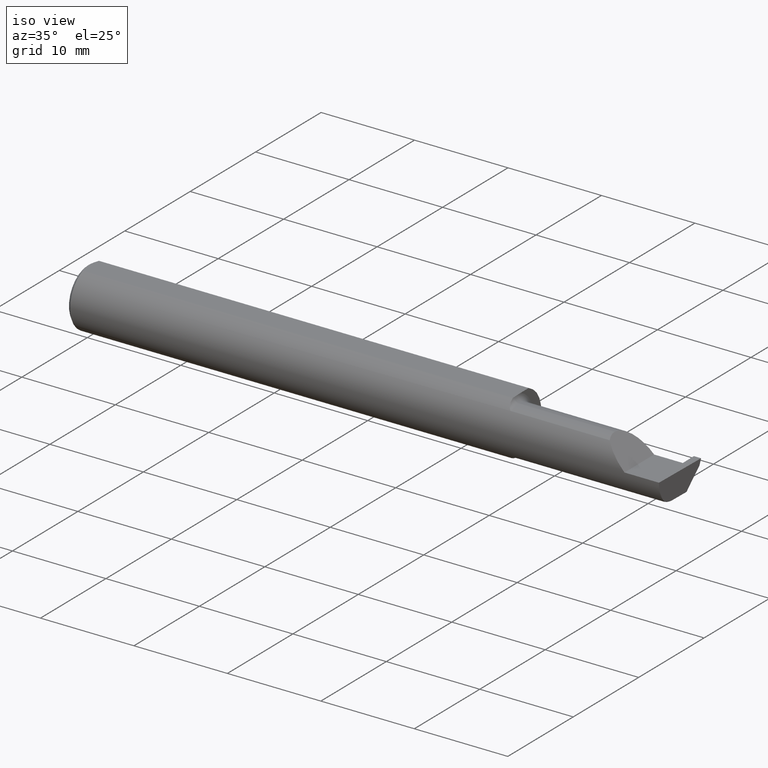
[diagram: clean part render]
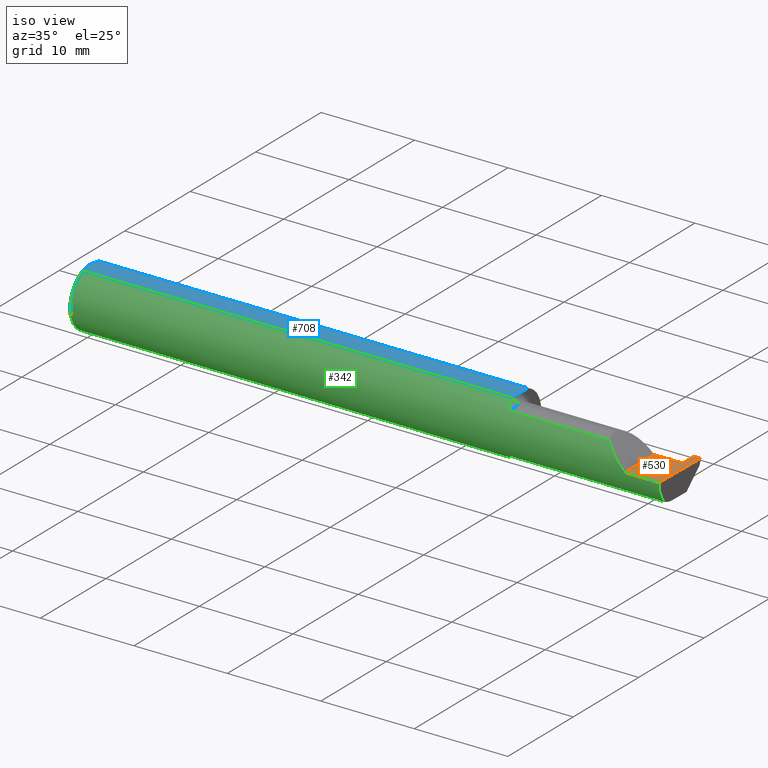
[diagram: same view with three faces highlighted in distinct colors, each labeled with its STEP entity id]
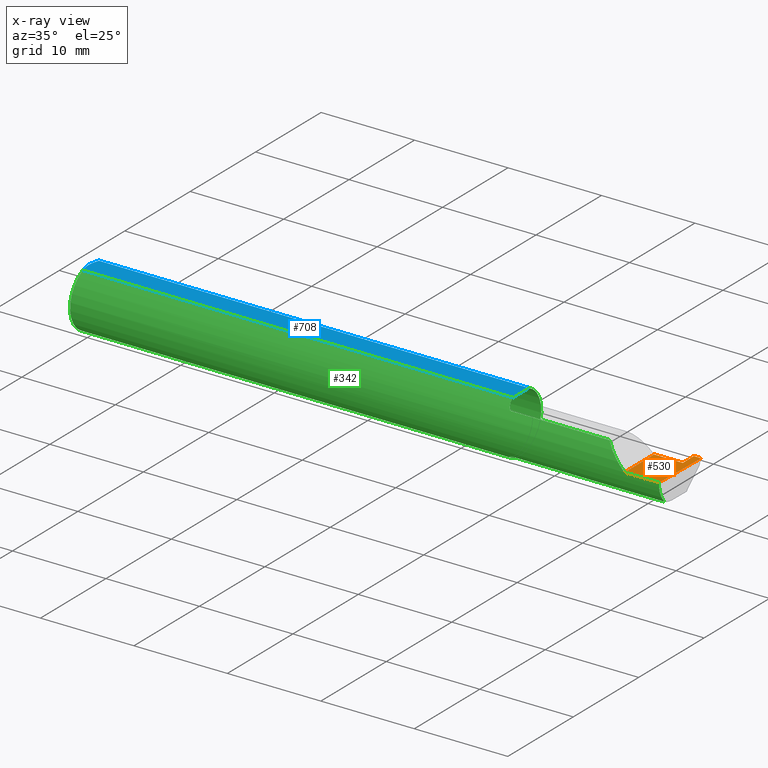
[diagram: x-ray of the same camera — body ghosted, the three highlighted faces saturated]
A machine part, iso view with three faces highlighted in distinct colors.
The next image is the same camera in x-ray (body ghosted, the three faces saturated) — at least one of them is partly hidden behind the body in this view.
Their STEP definitions:

[orange] entity #530 — the highlighted planar face has unit normal (-0, 0, -1).
#3 = DIRECTION ( 'NONE',  ( -1.000000000000000000, -1.575190080147340530E-15, 1.224646799147352221E-16 ) ) ;
#8 = VERTEX_POINT ( 'NONE', #549 ) ;
#32 = CARTESIAN_POINT ( 'NONE',  ( 2.469500000000000028, 0.1221499999999999808, -3.306546357697866753E-19 ) ) ;
#39 = ORIENTED_EDGE ( 'NONE', *, *, #294, .F. ) ;
#51 = CARTESIAN_POINT ( 'NONE',  ( 2.399999999999999911, 0.1221499999999999808, -3.306546357697866753E-19 ) ) ;
#63 = EDGE_CURVE ( 'NONE', #681, #8, #738, .T. ) ;
#78 = CARTESIAN_POINT ( 'NONE',  ( 2.500000000000000000, -0.2000000000000000111, 0.000000000000000000 ) ) ;
#88 = ORIENTED_EDGE ( 'NONE', *, *, #609, .T. ) ;
#107 = LINE ( 'NONE', #425, #680 ) ;
#118 = DIRECTION ( 'NONE',  ( 0.01744642479411464761, 0.9998477995484629233, -2.135106780035675284E-18 ) ) ;
#123 = LINE ( 'NONE', #183, #574 ) ;
#149 = CARTESIAN_POINT ( 'NONE',  ( 1.824999999999999956, 0.05414999999999996899, 8.266365894244626938E-17 ) ) ;
#154 = AXIS2_PLACEMENT_3D ( 'NONE', #78, #208, #376 ) ;
#183 = CARTESIAN_POINT ( 'NONE',  ( 2.494380489674781209, -0.1999019447116721915, 6.881915332554903690E-19 ) ) ;
#188 = ORIENTED_EDGE ( 'NONE', *, *, #366, .T. ) ;
#208 = DIRECTION ( 'NONE',  ( -1.224646799147352221E-16, 0.000000000000000000, -1.000000000000000000 ) ) ;
#227 = LINE ( 'NONE', #586, #270 ) ;
#234 = CARTESIAN_POINT ( 'NONE',  ( 2.495690077103728921, -0.1248499999950965084, 1.733801157256528502E-17 ) ) ;
#236 = VERTEX_POINT ( 'NONE', #400 ) ;
#251 = VERTEX_POINT ( 'NONE', #645 ) ;
#258 = VERTEX_POINT ( 'NONE', #234 ) ;
#270 = VECTOR ( 'NONE', #472, 39.37007874015748143 ) ;
#294 = EDGE_CURVE ( 'NONE', #258, #251, #428, .T. ) ;
#298 = DIRECTION ( 'NONE',  ( 1.000000000000000000, -0.000000000000000000, -0.000000000000000000 ) ) ;
#313 = PLANE ( 'NONE',  #154 ) ;
#334 = FACE_OUTER_BOUND ( 'NONE', #709, .T. ) ;
#365 = CARTESIAN_POINT ( 'NONE',  ( 3.749399456654637998E-32, -0.1248500000000000026, 3.061616997868380676E-16 ) ) ;
#366 = EDGE_CURVE ( 'NONE', #258, #471, #123, .T. ) ;
#376 = DIRECTION ( 'NONE',  ( -1.000000000000000000, 0.000000000000000000, 1.224646799147352221E-16 ) ) ;
#388 = EDGE_CURVE ( 'NONE', #236, #8, #107, .T. ) ;
#400 = CARTESIAN_POINT ( 'NONE',  ( 2.470684773821554714, 0.05415000000000003144, 1.033206487548650521E-17 ) ) ;
#421 = EDGE_CURVE ( 'NONE', #731, #471, #607, .T. ) ;
#425 = CARTESIAN_POINT ( 'NONE',  ( 2.499999999999999556, 0.05415000000000008695, 4.902684361075352417E-32 ) ) ;
#428 = LINE ( 'NONE', #365, #431 ) ;
#431 = VECTOR ( 'NONE', #610, 39.37007874015748143 ) ;
#437 = CARTESIAN_POINT ( 'NONE',  ( 2.350000000000000089, -0.2000000000000000111, 1.836970198721028825E-17 ) ) ;
#439 = ORIENTED_EDGE ( 'NONE', *, *, #388, .T. ) ;
#469 = CARTESIAN_POINT ( 'NONE',  ( 2.350000000000000089, 0.05414999999999985103, 1.836970198721028825E-17 ) ) ;
#471 = VERTEX_POINT ( 'NONE', #684 ) ;
#472 = DIRECTION ( 'NONE',  ( 0.01742050049977532031, -0.9998482515673753346, -2.130797594924658018E-18 ) ) ;
#530 = ADVANCED_FACE ( 'NONE', ( #334 ), #313, .F. ) ;
#535 = VECTOR ( 'NONE', #298, 39.37007874015748143 ) ;
#549 = CARTESIAN_POINT ( 'NONE',  ( 2.469500000000000028, 0.05415000000000000369, 8.266350036991706304E-17 ) ) ;
#562 = EDGE_CURVE ( 'NONE', #251, #681, #733, .T. ) ;
#570 = DIRECTION ( 'NONE',  ( -0.000000000000000000, 1.000000000000000000, -0.000000000000000000 ) ) ;
#574 = VECTOR ( 'NONE', #118, 39.37007874015748854 ) ;
#586 = CARTESIAN_POINT ( 'NONE',  ( 2.475120418573686809, -0.2004334805406639275, 3.046869975786049280E-18 ) ) ;
#607 = LINE ( 'NONE', #51, #535 ) ;
#609 = EDGE_CURVE ( 'NONE', #731, #236, #227, .T. ) ;
#610 = DIRECTION ( 'NONE',  ( -1.000000000000000000, -0.000000000000000000, -0.000000000000000000 ) ) ;
#626 = DIRECTION ( 'NONE',  ( 1.000000000000000000, 0.000000000000000000, 0.000000000000000000 ) ) ;
#645 = CARTESIAN_POINT ( 'NONE',  ( 2.350000000000000089, -0.1248500000000000026, 1.836970198721028825E-17 ) ) ;
#657 = ORIENTED_EDGE ( 'NONE', *, *, #63, .F. ) ;
#660 = ORIENTED_EDGE ( 'NONE', *, *, #421, .F. ) ;
#680 = VECTOR ( 'NONE', #3, 39.37007874015748143 ) ;
#681 = VERTEX_POINT ( 'NONE', #469 ) ;
#683 = VECTOR ( 'NONE', #570, 39.37007874015748143 ) ;
#684 = CARTESIAN_POINT ( 'NONE',  ( 2.500000000000000444, 0.1221499999999999808, 1.947508823608312588E-17 ) ) ;
#709 = EDGE_LOOP ( 'NONE', ( #39, #188, #660, #88, #439, #657, #750 ) ) ;
#731 = VERTEX_POINT ( 'NONE', #32 ) ;
#733 = LINE ( 'NONE', #437, #683 ) ;
#738 = LINE ( 'NONE', #149, #746 ) ;
#746 = VECTOR ( 'NONE', #626, 39.37007874015748143 ) ;
#750 = ORIENTED_EDGE ( 'NONE', *, *, #562, .F. ) ;

[blue] entity #708 — the highlighted planar face has unit normal (0, -0, 1).
#21 = CARTESIAN_POINT ( 'NONE',  ( 0.000000000000000000, -0.04895916665957456698, 0.1148500000000000076 ) ) ;
#27 = CARTESIAN_POINT ( 'NONE',  ( 0.01499999999999999944, -0.04895916665957456698, 0.1148500000000000076 ) ) ;
#30 = CARTESIAN_POINT ( 'NONE',  ( 0.004999999999999990563, 1.454187663965904829E-17, 0.1148500000000000076 ) ) ;
#44 = B_SPLINE_CURVE_WITH_KNOTS ( 'NONE', 3,
 ( #352, #648, #590, #348, #479, #760 ),
 .UNSPECIFIED., .F., .F.,
 ( 4, 2, 4 ),
 ( 0.009355882855462110265, 0.009420520835871136131, 0.009485158816280161997 ),
 .UNSPECIFIED. ) ;
#53 = VERTEX_POINT ( 'NONE', #27 ) ;
#60 = DIRECTION ( 'NONE',  ( -1.000000000000000000, -0.000000000000000000, -0.000000000000000000 ) ) ;
#79 = CARTESIAN_POINT ( 'NONE',  ( 1.826365755776839350, -0.04385000000000001397, 0.1148500000000000076 ) ) ;
#85 = EDGE_CURVE ( 'NONE', #142, #557, #335, .T. ) ;
#89 = FACE_OUTER_BOUND ( 'NONE', #483, .T. ) ;
#106 = CARTESIAN_POINT ( 'NONE',  ( 1.824999999999999734, 0.0001781444078671173391, 0.1148500000000000076 ) ) ;
#116 = CARTESIAN_POINT ( 'NONE',  ( 0.005932194444709715242, -0.01671525318617308672, 0.1148499999999999938 ) ) ;
#126 = CARTESIAN_POINT ( 'NONE',  ( 0.01195732443765547617, -0.04120008761723503027, 0.1148500000000000076 ) ) ;
#136 = VERTEX_POINT ( 'NONE', #79 ) ;
#142 = VERTEX_POINT ( 'NONE', #525 ) ;
#143 = B_SPLINE_CURVE_WITH_KNOTS ( 'NONE', 3,
 ( #424, #658, #116, #427, #126, #361 ),
 .UNSPECIFIED., .F., .F.,
 ( 4, 2, 4 ),
 ( 0.003658435455108827606, 0.004289327297787134258, 0.004920219140465441343 ),
 .UNSPECIFIED. ) ;
#157 = CARTESIAN_POINT ( 'NONE',  ( 0.004999999999999962808, 0.008410227287019804779, 0.1148500000000000076 ) ) ;
#169 = CARTESIAN_POINT ( 'NONE',  ( 0.004999999999999990563, 1.454187663965904829E-17, 0.1148500000000000076 ) ) ;
#171 = CARTESIAN_POINT ( 'NONE',  ( 1.825400391910593445, -0.01449986171080065549, 0.1148500000000000076 ) ) ;
#220 = CARTESIAN_POINT ( 'NONE',  ( 1.826365755776839350, -0.04385000000000001397, 0.1148500000000000076 ) ) ;
#225 = CARTESIAN_POINT ( 'NONE',  ( 0.01193974418109659125, 0.04115525648180412555, 0.1148500000000000215 ) ) ;
#235 = EDGE_CURVE ( 'NONE', #239, #279, #747, .T. ) ;
#239 = VERTEX_POINT ( 'NONE', #283 ) ;
#262 = EDGE_CURVE ( 'NONE', #349, #136, #44, .T. ) ;
#273 = DIRECTION ( 'NONE',  ( -0.000000000000000000, 1.000000000000000000, 0.000000000000000000 ) ) ;
#279 = VERTEX_POINT ( 'NONE', #30 ) ;
#283 = CARTESIAN_POINT ( 'NONE',  ( 0.01499999999999987454, 0.04895916665957496944, 0.1148500000000000076 ) ) ;
#335 = LINE ( 'NONE', #613, #665 ) ;
#348 = CARTESIAN_POINT ( 'NONE',  ( 1.826362484150211518, -0.04555293709217378417, 0.1148500000000000076 ) ) ;
#349 = VERTEX_POINT ( 'NONE', #372 ) ;
#352 = CARTESIAN_POINT ( 'NONE',  ( 1.826326891871132618, -0.04895916665958129077, 0.1148500000000000076 ) ) ;
#361 = CARTESIAN_POINT ( 'NONE',  ( 0.01499999999999999944, -0.04895916665957456698, 0.1148500000000000076 ) ) ;
#372 = CARTESIAN_POINT ( 'NONE',  ( 1.826326891871132618, -0.04895916665958129077, 0.1148500000000000076 ) ) ;
#374 = ORIENTED_EDGE ( 'NONE', *, *, #736, .T. ) ;
#384 = ORIENTED_EDGE ( 'NONE', *, *, #786, .T. ) ;
#408 = ORIENTED_EDGE ( 'NONE', *, *, #235, .T. ) ;
#411 = CARTESIAN_POINT ( 'NONE',  ( 0.009410502401328750890, 0.03310661131402438395, 0.1148499999999999938 ) ) ;
#413 = EDGE_CURVE ( 'NONE', #557, #239, #662, .T. ) ;
#423 = ORIENTED_EDGE ( 'NONE', *, *, #413, .T. ) ;
#424 = CARTESIAN_POINT ( 'NONE',  ( 0.004999999999999990563, 1.454187663965904829E-17, 0.1148500000000000076 ) ) ;
#427 = CARTESIAN_POINT ( 'NONE',  ( 0.009415874254822407391, -0.03313958207962815206, 0.1148500000000000076 ) ) ;
#454 = DIRECTION ( 'NONE',  ( 1.000000000000000000, 0.000000000000000000, 0.000000000000000000 ) ) ;
#466 = EDGE_CURVE ( 'NONE', #53, #349, #514, .T. ) ;
#467 = CARTESIAN_POINT ( 'NONE',  ( 1.826365755776839572, -0.03650543323727819395, 0.1148500000000000215 ) ) ;
#479 = CARTESIAN_POINT ( 'NONE',  ( 1.826365755776839350, -0.04470142088177659484, 0.1148500000000000076 ) ) ;
#480 = ORIENTED_EDGE ( 'NONE', *, *, #466, .T. ) ;
#483 = EDGE_LOOP ( 'NONE', ( #480, #492, #374, #758, #423, #408, #384 ) ) ;
#492 = ORIENTED_EDGE ( 'NONE', *, *, #262, .T. ) ;
#494 = CARTESIAN_POINT ( 'NONE',  ( 1.824999999999999734, 0.04895916665957496944, 0.1148500000000000076 ) ) ;
#498 = AXIS2_PLACEMENT_3D ( 'NONE', #520, #756, #759 ) ;
#514 = LINE ( 'NONE', #21, #627 ) ;
#516 = PLANE ( 'NONE',  #498 ) ;
#520 = CARTESIAN_POINT ( 'NONE',  ( 2.500000000000000000, -0.1248500000000000165, 0.1148500000000000076 ) ) ;
#525 = CARTESIAN_POINT ( 'NONE',  ( 1.824999999999999734, 0.0001781444078671173391, 0.1148500000000000076 ) ) ;
#545 = CARTESIAN_POINT ( 'NONE',  ( 1.824999999999999734, -0.007185469346090048864, 0.1148500000000000076 ) ) ;
#557 = VERTEX_POINT ( 'NONE', #494 ) ;
#590 = CARTESIAN_POINT ( 'NONE',  ( 1.826349474474282086, -0.04725615793152068700, 0.1148499999999999938 ) ) ;
#613 = CARTESIAN_POINT ( 'NONE',  ( 1.824999999999999734, -0.1248500000000000165, 0.1148500000000000076 ) ) ;
#627 = VECTOR ( 'NONE', #454, 39.37007874015748143 ) ;
#638 = B_SPLINE_CURVE_WITH_KNOTS ( 'NONE', 3,
 ( #220, #467, #654, #171, #545, #106 ),
 .UNSPECIFIED., .F., .F.,
 ( 4, 2, 4 ),
 ( 0.009485158816280161997, 0.01004274199597738476, 0.01060032517567460753 ),
 .UNSPECIFIED. ) ;
#648 = CARTESIAN_POINT ( 'NONE',  ( 1.826339737573306587, -0.04810771292240879210, 0.1148500000000000215 ) ) ;
#654 = CARTESIAN_POINT ( 'NONE',  ( 1.826090261609496501, -0.02916889382056607818, 0.1148499999999999938 ) ) ;
#655 = VECTOR ( 'NONE', #60, 39.37007874015748143 ) ;
#658 = CARTESIAN_POINT ( 'NONE',  ( 0.004999999999999964542, -0.008410771716546819321, 0.1148500000000000215 ) ) ;
#662 = LINE ( 'NONE', #719, #655 ) ;
#665 = VECTOR ( 'NONE', #273, 39.37007874015748143 ) ;
#704 = CARTESIAN_POINT ( 'NONE',  ( 0.005947935873631229539, 0.01679708999422689641, 0.1148500000000000076 ) ) ;
#708 = ADVANCED_FACE ( 'NONE', ( #89 ), #516, .T. ) ;
#719 = CARTESIAN_POINT ( 'NONE',  ( 0.000000000000000000, 0.04895916665957456698, 0.1148500000000000076 ) ) ;
#736 = EDGE_CURVE ( 'NONE', #136, #142, #638, .T. ) ;
#747 = B_SPLINE_CURVE_WITH_KNOTS ( 'NONE', 3,
 ( #778, #225, #411, #704, #157, #169 ),
 .UNSPECIFIED., .F., .F.,
 ( 4, 2, 4 ),
 ( 0.002396733445051244405, 0.003027584450080036006, 0.003658435455108827606 ),
 .UNSPECIFIED. ) ;
#756 = DIRECTION ( 'NONE',  ( 0.000000000000000000, -0.000000000000000000, 1.000000000000000000 ) ) ;
#758 = ORIENTED_EDGE ( 'NONE', *, *, #85, .T. ) ;
#759 = DIRECTION ( 'NONE',  ( 1.000000000000000000, 0.000000000000000000, -0.000000000000000000 ) ) ;
#760 = CARTESIAN_POINT ( 'NONE',  ( 1.826365755776839350, -0.04385000000000001397, 0.1148500000000000076 ) ) ;
#778 = CARTESIAN_POINT ( 'NONE',  ( 0.01499999999999987454, 0.04895916665957496944, 0.1148500000000000076 ) ) ;
#786 = EDGE_CURVE ( 'NONE', #279, #53, #143, .T. ) ;

[green] entity #342 — the highlighted cylindrical surface (edge-blend (fillet) strip) has radius 3.1712 mm, axis along (-1, -0, -0).
#10 = AXIS2_PLACEMENT_3D ( 'NONE', #486, #127, #539 ) ;
#11 = CARTESIAN_POINT ( 'NONE',  ( 2.494033449660867152, -0.09015216647662485649, -0.08637192471845764330 ) ) ;
#13 = CARTESIAN_POINT ( 'NONE',  ( 2.493072779947982820, -0.1248043149033065402, -0.09996577117162359916 ) ) ;
#18 = VERTEX_POINT ( 'NONE', #135 ) ;
#21 = CARTESIAN_POINT ( 'NONE',  ( 0.000000000000000000, -0.04895916665957456698, 0.1148500000000000076 ) ) ;
#24 = ORIENTED_EDGE ( 'NONE', *, *, #209, .F. ) ;
#25 = VECTOR ( 'NONE', #637, 39.37007874015748143 ) ;
#27 = CARTESIAN_POINT ( 'NONE',  ( 0.01499999999999999944, -0.04895916665957456698, 0.1148500000000000076 ) ) ;
#36 = CARTESIAN_POINT ( 'NONE',  ( 1.834117122045984649, -0.07738857672837949619, 0.09808127502721009083 ) ) ;
#46 = ORIENTED_EDGE ( 'NONE', *, *, #466, .F. ) ;
#47 = AXIS2_PLACEMENT_3D ( 'NONE', #160, #463, #339 ) ;
#50 = ORIENTED_EDGE ( 'NONE', *, *, #753, .F. ) ;
#53 = VERTEX_POINT ( 'NONE', #27 ) ;
#54 = CARTESIAN_POINT ( 'NONE',  ( 1.833278800716857893, -0.07573621487658345475, -0.09938639293507166295 ) ) ;
#59 = CARTESIAN_POINT ( 'NONE',  ( 1.844784064659362732, -0.08911389870154566573, -0.08746251087962758630 ) ) ;
#60 = DIRECTION ( 'NONE',  ( -1.000000000000000000, -0.000000000000000000, -0.000000000000000000 ) ) ;
#86 = CARTESIAN_POINT ( 'NONE',  ( 1.827489051389917352, -0.05793447593726084449, 0.1110239341510882022 ) ) ;
#99 = CARTESIAN_POINT ( 'NONE',  ( 1.826326891871132618, -0.04895916665958129077, 0.1148500000000000076 ) ) ;
#110 = CARTESIAN_POINT ( 'NONE',  ( 1.824999999999999734, -0.03284222813693378484, -0.1205938689030582739 ) ) ;
#117 = EDGE_CURVE ( 'NONE', #695, #53, #267, .T. ) ;
#121 = CARTESIAN_POINT ( 'NONE',  ( 1.825756598855983848, -0.04385000000000000703, -0.1168961077196328247 ) ) ;
#124 = ORIENTED_EDGE ( 'NONE', *, *, #314, .T. ) ;
#127 = DIRECTION ( 'NONE',  ( -1.000000000000000000, -0.000000000000000000, -0.000000000000000000 ) ) ;
#128 = VERTEX_POINT ( 'NONE', #11 ) ;
#135 = CARTESIAN_POINT ( 'NONE',  ( 1.825756598855983848, -0.04385000000000000703, -0.1168961077196328247 ) ) ;
#156 = CARTESIAN_POINT ( 'NONE',  ( 2.495688583004118666, -0.1248499869621840785, -5.705736120969982501E-05 ) ) ;
#160 = CARTESIAN_POINT ( 'NONE',  ( 0.01499999999999999944, 0.000000000000000000, 0.000000000000000000 ) ) ;
#164 = CARTESIAN_POINT ( 'NONE',  ( 1.824999999999999734, 0.000000000000000000, 0.000000000000000000 ) ) ;
#181 = B_SPLINE_CURVE_WITH_KNOTS ( 'NONE', 3,
 ( #99, #86, #224, #36, #647, #402, #282, #527, #406, #772 ),
 .UNSPECIFIED., .F., .F.,
 ( 4, 2, 2, 2, 4 ),
 ( 5.065792501960267767E-07, 0.0007388407002080928359, 0.001108007760687040530, 0.001292591290926509064, 0.001477174821165977382 ),
 .UNSPECIFIED. ) ;
#189 = AXIS2_PLACEMENT_3D ( 'NONE', #693, #200, #742 ) ;
#191 = CARTESIAN_POINT ( 'NONE',  ( 2.263628075281542973, -0.09015216647662456506, 0.08637192471845794861 ) ) ;
#196 = EDGE_LOOP ( 'NONE', ( #353, #426, #390, #363, #124, #274, #785, #46, #533, #253, #619, #24, #50, #591 ) ) ;
#200 = DIRECTION ( 'NONE',  ( -1.000000000000000000, -0.000000000000000000, -0.000000000000000000 ) ) ;
#205 = VERTEX_POINT ( 'NONE', #635 ) ;
#209 = EDGE_CURVE ( 'NONE', #646, #557, #775, .T. ) ;
#212 = CARTESIAN_POINT ( 'NONE',  ( 2.159749999999999837, -0.09015216647662485649, 0.08637192471845764330 ) ) ;
#224 = CARTESIAN_POINT ( 'NONE',  ( 1.829335346929731765, -0.06618116991733531684, 0.1062694618618282988 ) ) ;
#228 = DIRECTION ( 'NONE',  ( 0.000000000000000000, 0.000000000000000000, -1.000000000000000000 ) ) ;
#234 = CARTESIAN_POINT ( 'NONE',  ( 2.495690077103728921, -0.1248499999950965084, 1.733801157256528502E-17 ) ) ;
#239 = VERTEX_POINT ( 'NONE', #283 ) ;
#240 = CARTESIAN_POINT ( 'NONE',  ( 1.825756598855983848, -0.04385000000000000703, -0.1168961077196328247 ) ) ;
#247 = CARTESIAN_POINT ( 'NONE',  ( 1.849999999999999867, -0.09015216647662482874, -0.08637192471845765718 ) ) ;
#248 = EDGE_CURVE ( 'NONE', #239, #695, #333, .T. ) ;
#251 = VERTEX_POINT ( 'NONE', #645 ) ;
#253 = ORIENTED_EDGE ( 'NONE', *, *, #248, .F. ) ;
#258 = VERTEX_POINT ( 'NONE', #234 ) ;
#267 = CIRCLE ( 'NONE', #189, 0.1248500000000000026 ) ;
#274 = ORIENTED_EDGE ( 'NONE', *, *, #617, .F. ) ;
#275 = LINE ( 'NONE', #212, #25 ) ;
#282 = CARTESIAN_POINT ( 'NONE',  ( 1.841486677516483983, -0.08696861555848788006, 0.08959154238187722052 ) ) ;
#283 = CARTESIAN_POINT ( 'NONE',  ( 0.01499999999999987454, 0.04895916665957496944, 0.1148500000000000076 ) ) ;
#288 = CARTESIAN_POINT ( 'NONE',  ( 1.830064983703084680, -0.06736177101644134912, -0.1052426774175049123 ) ) ;
#293 = CARTESIAN_POINT ( 'NONE',  ( 1.847259638933031134, -0.09015216647662505078, -0.08637192471845750452 ) ) ;
#294 = EDGE_CURVE ( 'NONE', #258, #251, #428, .T. ) ;
#295 = CARTESIAN_POINT ( 'NONE',  ( 2.317406910344188997, -0.1248500000000000165, 0.03259308965581150103 ) ) ;
#300 = CARTESIAN_POINT ( 'NONE',  ( 1.826227715916084904, -0.04883822427082843559, -0.1150249279297937410 ) ) ;
#309 =( BOUNDED_CURVE ( )  B_SPLINE_CURVE ( 3, ( #346, #410, #703, #156 ),
 .UNSPECIFIED., .F., .F. ) 
 B_SPLINE_CURVE_WITH_KNOTS ( ( 4, 4 ),
 ( 0.2190942387645160583, 0.9826237902196512941 ),
 .UNSPECIFIED. ) 
 CURVE ( )  GEOMETRIC_REPRESENTATION_ITEM ( )  RATIONAL_B_SPLINE_CURVE ( ( 1.000000000000000000, 0.9520057322288819623, 0.9520057322288819623, 1.000000000000000000 ) ) 
 REPRESENTATION_ITEM ( '' )  );
#314 = EDGE_CURVE ( 'NONE', #251, #459, #441, .T. ) ;
#333 = CIRCLE ( 'NONE', #47, 0.1248500000000000026 ) ;
#339 = DIRECTION ( 'NONE',  ( 0.000000000000000000, 0.000000000000000000, 1.000000000000000000 ) ) ;
#342 = ADVANCED_FACE ( 'NONE', ( #784 ), #666, .T. ) ;
#346 = CARTESIAN_POINT ( 'NONE',  ( 2.494033449660867152, -0.09015216647662485649, -0.08637192471845764330 ) ) ;
#349 = VERTEX_POINT ( 'NONE', #372 ) ;
#353 = ORIENTED_EDGE ( 'NONE', *, *, #762, .F. ) ;
#357 = CARTESIAN_POINT ( 'NONE',  ( 2.495688583004118666, -0.1248499869621840785, -5.705736120969982501E-05 ) ) ;
#363 = ORIENTED_EDGE ( 'NONE', *, *, #294, .T. ) ;
#365 = CARTESIAN_POINT ( 'NONE',  ( 3.749399456654637998E-32, -0.1248500000000000026, 3.061616997868380676E-16 ) ) ;
#368 = CARTESIAN_POINT ( 'NONE',  ( 1.825242610568497792, -0.03840785182185595115, -0.1189375631818110762 ) ) ;
#372 = CARTESIAN_POINT ( 'NONE',  ( 1.826326891871132618, -0.04895916665958129077, 0.1148500000000000076 ) ) ;
#390 = ORIENTED_EDGE ( 'NONE', *, *, #517, .T. ) ;
#402 = CARTESIAN_POINT ( 'NONE',  ( 1.839990549600782677, -0.08554147198593003987, 0.09096407607054025901 ) ) ;
#406 = CARTESIAN_POINT ( 'NONE',  ( 1.847502509400850368, -0.09015216647698168217, 0.08637192471808535776 ) ) ;
#407 = DIRECTION ( 'NONE',  ( 1.000000000000000000, 0.000000000000000000, 0.000000000000000000 ) ) ;
#410 = CARTESIAN_POINT ( 'NONE',  ( 2.494256244271084721, -0.1126860773865890758, -0.06285177167860768466 ) ) ;
#413 = EDGE_CURVE ( 'NONE', #557, #239, #662, .T. ) ;
#414 = CARTESIAN_POINT ( 'NONE',  ( 1.824999999999999734, -0.02715330672748003313, -0.1218614805168695830 ) ) ;
#420 = CARTESIAN_POINT ( 'NONE',  ( 1.826929090759343399, -0.05370719728932732417, -0.1128289886859671770 ) ) ;
#426 = ORIENTED_EDGE ( 'NONE', *, *, #650, .T. ) ;
#428 = LINE ( 'NONE', #365, #431 ) ;
#431 = VECTOR ( 'NONE', #610, 39.37007874015748143 ) ;
#441 =( BOUNDED_CURVE ( )  B_SPLINE_CURVE ( 3, ( #547, #295, #556, #603 ),
 .UNSPECIFIED., .F., .F. ) 
 B_SPLINE_CURVE_WITH_KNOTS ( ( 4, 4 ),
 ( 4.712388980384690562, 5.476375539154171967 ),
 .UNSPECIFIED. ) 
 CURVE ( )  GEOMETRIC_REPRESENTATION_ITEM ( )  RATIONAL_B_SPLINE_CURVE ( ( 1.000000000000000000, 0.9519489620492036508, 0.9519489620492036508, 1.000000000000000000 ) ) 
 REPRESENTATION_ITEM ( '' )  );
#454 = DIRECTION ( 'NONE',  ( 1.000000000000000000, 0.000000000000000000, 0.000000000000000000 ) ) ;
#459 = VERTEX_POINT ( 'NONE', #191 ) ;
#463 = DIRECTION ( 'NONE',  ( -1.000000000000000000, -0.000000000000000000, -0.000000000000000000 ) ) ;
#466 = EDGE_CURVE ( 'NONE', #53, #349, #514, .T. ) ;
#477 = VECTOR ( 'NONE', #595, 39.37007874015748143 ) ;
#478 = CARTESIAN_POINT ( 'NONE',  ( 1.828850144156349833, -0.06295012366509160351, -0.1079450122012245022 ) ) ;
#485 = CARTESIAN_POINT ( 'NONE',  ( 1.835226514481664628, -0.07966992494485877763, -0.09623747760188193501 ) ) ;
#486 = CARTESIAN_POINT ( 'NONE',  ( 0.000000000000000000, 0.000000000000000000, 0.000000000000000000 ) ) ;
#491 = CARTESIAN_POINT ( 'NONE',  ( 1.839311064734461265, -0.08485061678078677228, -0.09161469295857040118 ) ) ;
#494 = CARTESIAN_POINT ( 'NONE',  ( 1.824999999999999734, 0.04895916665957496944, 0.1148500000000000076 ) ) ;
#514 = LINE ( 'NONE', #21, #627 ) ;
#517 = EDGE_CURVE ( 'NONE', #774, #258, #558, .T. ) ;
#524 = CARTESIAN_POINT ( 'NONE',  ( 1.824999999999999734, -0.02715330672748003313, -0.1218614805168695830 ) ) ;
#527 = CARTESIAN_POINT ( 'NONE',  ( 1.845195245915189464, -0.08928014009842916154, 0.08728826463235836441 ) ) ;
#533 = ORIENTED_EDGE ( 'NONE', *, *, #117, .F. ) ;
#539 = DIRECTION ( 'NONE',  ( 0.000000000000000000, 0.000000000000000000, 1.000000000000000000 ) ) ;
#547 = CARTESIAN_POINT ( 'NONE',  ( 2.350000000000000089, -0.1248500000000000026, 1.836970198721028825E-17 ) ) ;
#556 = CARTESIAN_POINT ( 'NONE',  ( 2.287163018370355072, -0.1127002472623170326, 0.06283698162964523881 ) ) ;
#557 = VERTEX_POINT ( 'NONE', #494 ) ;
#558 = LINE ( 'NONE', #13, #734 ) ;
#580 = CARTESIAN_POINT ( 'NONE',  ( 0.01499999999999999944, 0.000000000000000000, -0.1248500000000000026 ) ) ;
#583 = CARTESIAN_POINT ( 'NONE',  ( 1.849999999999999867, -0.09015216647662489813, 0.08637192471845762942 ) ) ;
#591 = ORIENTED_EDGE ( 'NONE', *, *, #777, .F. ) ;
#595 = DIRECTION ( 'NONE',  ( -1.000000000000000000, -0.000000000000000000, -0.000000000000000000 ) ) ;
#596 = B_SPLINE_CURVE_WITH_KNOTS ( 'NONE', 3,
 ( #240, #368, #110, #414 ),
 .UNSPECIFIED., .F., .F.,
 ( 4, 4 ),
 ( 0.001640801893433585686, 0.002088276671954498141 ),
 .UNSPECIFIED. ) ;
#603 = CARTESIAN_POINT ( 'NONE',  ( 2.263628075281542973, -0.09015216647662456506, 0.08637192471845794861 ) ) ;
#605 = CARTESIAN_POINT ( 'NONE',  ( 1.840875432832430603, -0.08647060418110449898, -0.09007670266896466993 ) ) ;
#610 = DIRECTION ( 'NONE',  ( -1.000000000000000000, -0.000000000000000000, -0.000000000000000000 ) ) ;
#617 = EDGE_CURVE ( 'NONE', #728, #459, #275, .T. ) ;
#619 = ORIENTED_EDGE ( 'NONE', *, *, #413, .F. ) ;
#627 = VECTOR ( 'NONE', #454, 39.37007874015748143 ) ;
#635 = CARTESIAN_POINT ( 'NONE',  ( 1.849999999999999867, -0.09015216647662482874, -0.08637192471845765718 ) ) ;
#637 = DIRECTION ( 'NONE',  ( 1.000000000000000000, 0.000000000000000000, 0.000000000000000000 ) ) ;
#645 = CARTESIAN_POINT ( 'NONE',  ( 2.350000000000000089, -0.1248500000000000026, 1.836970198721028825E-17 ) ) ;
#646 = VERTEX_POINT ( 'NONE', #524 ) ;
#647 = CARTESIAN_POINT ( 'NONE',  ( 1.836053217927789527, -0.08094812012701396720, 0.09514231764808575575 ) ) ;
#650 = EDGE_CURVE ( 'NONE', #128, #774, #309, .T. ) ;
#655 = VECTOR ( 'NONE', #60, 39.37007874015748143 ) ;
#662 = LINE ( 'NONE', #719, #655 ) ;
#666 = CYLINDRICAL_SURFACE ( 'NONE', #10, 0.1248500000000000026 ) ;
#673 = EDGE_CURVE ( 'NONE', #349, #728, #181, .T. ) ;
#693 = CARTESIAN_POINT ( 'NONE',  ( 0.01499999999999999944, 0.000000000000000000, 0.000000000000000000 ) ) ;
#695 = VERTEX_POINT ( 'NONE', #580 ) ;
#703 = CARTESIAN_POINT ( 'NONE',  ( 2.494835769263151537, -0.1248351010429638308, -0.03262966116142155398 ) ) ;
#710 = B_SPLINE_CURVE_WITH_KNOTS ( 'NONE', 3,
 ( #247, #293, #59, #605, #491, #485, #54, #288, #478, #420, #300, #121 ),
 .UNSPECIFIED., .F., .F.,
 ( 4, 2, 2, 2, 2, 4 ),
 ( 1.963988863453036158E-07, 0.0002052720857047461386, 0.0004103477725231469402, 0.0008204991461599599276, 0.001230650519796772698, 0.001640801893433585686 ),
 .UNSPECIFIED. ) ;
#719 = CARTESIAN_POINT ( 'NONE',  ( 0.000000000000000000, 0.04895916665957456698, 0.1148500000000000076 ) ) ;
#722 = CARTESIAN_POINT ( 'NONE',  ( 2.159749999999999837, -0.09015216647662485649, -0.08637192471845764330 ) ) ;
#728 = VERTEX_POINT ( 'NONE', #583 ) ;
#734 = VECTOR ( 'NONE', #741, 39.37007874015748854 ) ;
#741 = DIRECTION ( 'NONE',  ( 0.02617296143184116158, -0.0004568507411563387400, 0.9996573249755575929 ) ) ;
#742 = DIRECTION ( 'NONE',  ( 0.000000000000000000, 0.000000000000000000, 1.000000000000000000 ) ) ;
#749 = AXIS2_PLACEMENT_3D ( 'NONE', #164, #407, #228 ) ;
#753 = EDGE_CURVE ( 'NONE', #18, #646, #596, .T. ) ;
#762 = EDGE_CURVE ( 'NONE', #128, #205, #783, .T. ) ;
#772 = CARTESIAN_POINT ( 'NONE',  ( 1.849999999999999867, -0.09015216647662489813, 0.08637192471845762942 ) ) ;
#774 = VERTEX_POINT ( 'NONE', #357 ) ;
#775 = CIRCLE ( 'NONE', #749, 0.1248500000000000026 ) ;
#777 = EDGE_CURVE ( 'NONE', #205, #18, #710, .T. ) ;
#783 = LINE ( 'NONE', #722, #477 ) ;
#784 = FACE_OUTER_BOUND ( 'NONE', #196, .T. ) ;
#785 = ORIENTED_EDGE ( 'NONE', *, *, #673, .F. ) ;